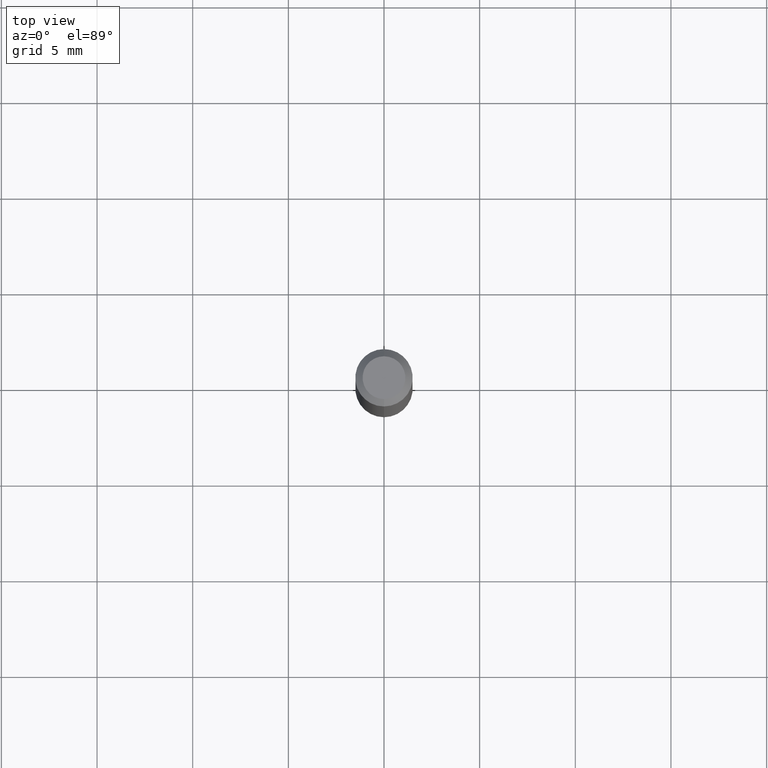
[diagram: clean part render]
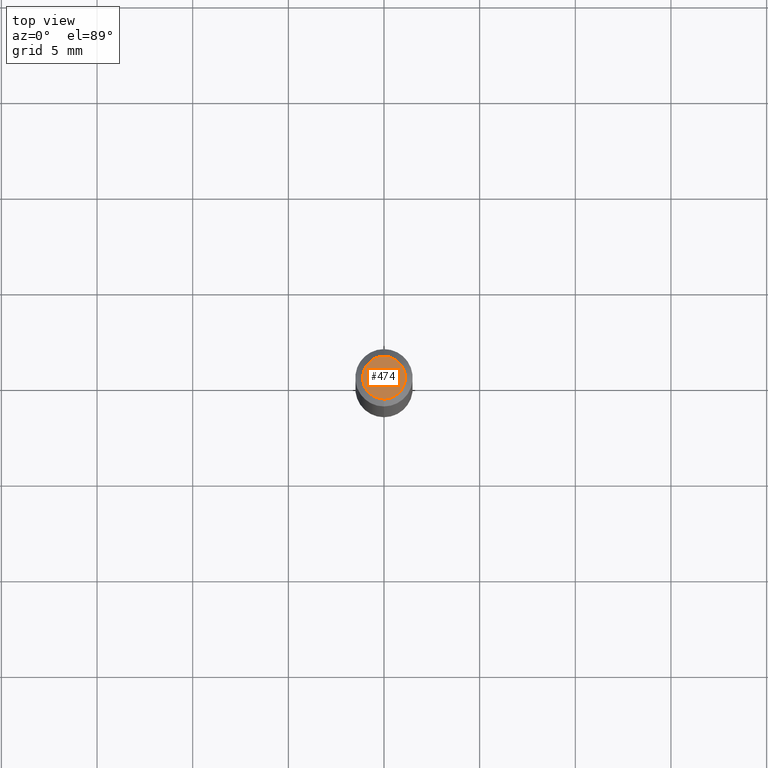
[diagram: same view with one face highlighted and labeled with its STEP entity id]
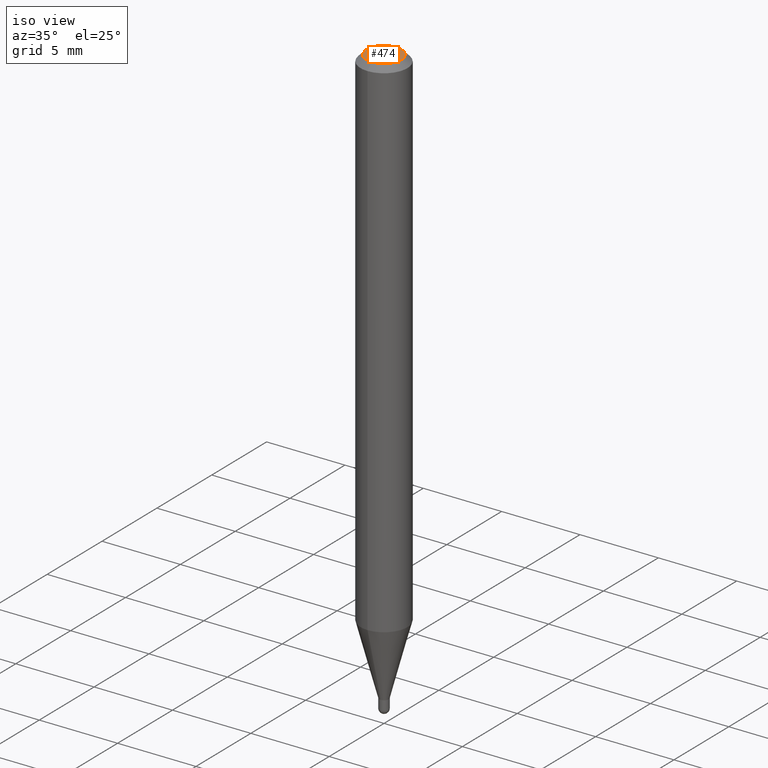
[diagram: same view with one face highlighted and labeled with its STEP entity id]
A machine part, top view. The second image highlights one B-rep face of the part: STEP entity #474.
A second angle (iso view) of the same face is appended — the face is thin or edge-on in the first view.
In plain terms, the highlighted planar face has unit normal (0, -0, -1).
Its self-contained STEP definition (entity closure, byte-faithful):
#17 = EDGE_CURVE ( 'NONE', #348, #278, #369, .T. ) ;
#36 = AXIS2_PLACEMENT_3D ( 'NONE', #273, #349, #296 ) ;
#72 = PLANE ( 'NONE',  #36 ) ;
#102 = DIRECTION ( 'NONE',  ( -2.445423680011858089E-29, 3.491545962091702599E-15, 1.000000000000000000 ) ) ;
#109 = FACE_OUTER_BOUND ( 'NONE', #200, .T. ) ;
#170 = EDGE_CURVE ( 'NONE', #278, #348, #448, .T. ) ;
#178 = CARTESIAN_POINT ( 'NONE',  ( 1.968549205807057487E-45, -2.810670431833362573E-31, -8.049931068785233476E-17 ) ) ;
#200 = EDGE_LOOP ( 'NONE', ( #305, #318 ) ) ;
#208 = AXIS2_PLACEMENT_3D ( 'NONE', #298, #102, #386 ) ;
#218 = AXIS2_PLACEMENT_3D ( 'NONE', #178, #299, #266 ) ;
#266 = DIRECTION ( 'NONE',  ( -6.982962677686265133E-15, -1.000000000000000000, 3.491545962091702994E-15 ) ) ;
#273 = CARTESIAN_POINT ( 'NONE',  ( 3.075995059520799729E-16, 0.04404999999999999888, -1.940522549740656613E-16 ) ) ;
#278 = VERTEX_POINT ( 'NONE', #388 ) ;
#296 = DIRECTION ( 'NONE',  ( 6.982962677686265922E-15, 1.000000000000000000, -3.491545962091702599E-15 ) ) ;
#298 = CARTESIAN_POINT ( 'NONE',  ( 1.968549205807057487E-45, -2.810670431833362573E-31, -8.049931068785233476E-17 ) ) ;
#299 = DIRECTION ( 'NONE',  ( -2.445423680011858089E-29, 3.491545962091702599E-15, 1.000000000000000000 ) ) ;
#305 = ORIENTED_EDGE ( 'NONE', *, *, #170, .T. ) ;
#318 = ORIENTED_EDGE ( 'NONE', *, *, #17, .T. ) ;
#348 = VERTEX_POINT ( 'NONE', #484 ) ;
#349 = DIRECTION ( 'NONE',  ( 2.445423680011857808E-29, -3.491545962091702599E-15, -1.000000000000000000 ) ) ;
#369 = CIRCLE ( 'NONE', #208, 0.04404999999999999888 ) ;
#386 = DIRECTION ( 'NONE',  ( -6.982962677686265133E-15, -1.000000000000000000, 3.491545962091702994E-15 ) ) ;
#388 = CARTESIAN_POINT ( 'NONE',  ( 3.599717260347271507E-16, 0.04404999999999999888, -2.343019103179918348E-16 ) ) ;
#448 = CIRCLE ( 'NONE', #218, 0.04404999999999999888 ) ;
#474 = ADVANCED_FACE ( 'NONE', ( #109 ), #72, .F. ) ;
#484 = CARTESIAN_POINT ( 'NONE',  ( -3.536586717851222218E-16, -0.04404999999999999888, 7.330328894228714067E-17 ) ) ;